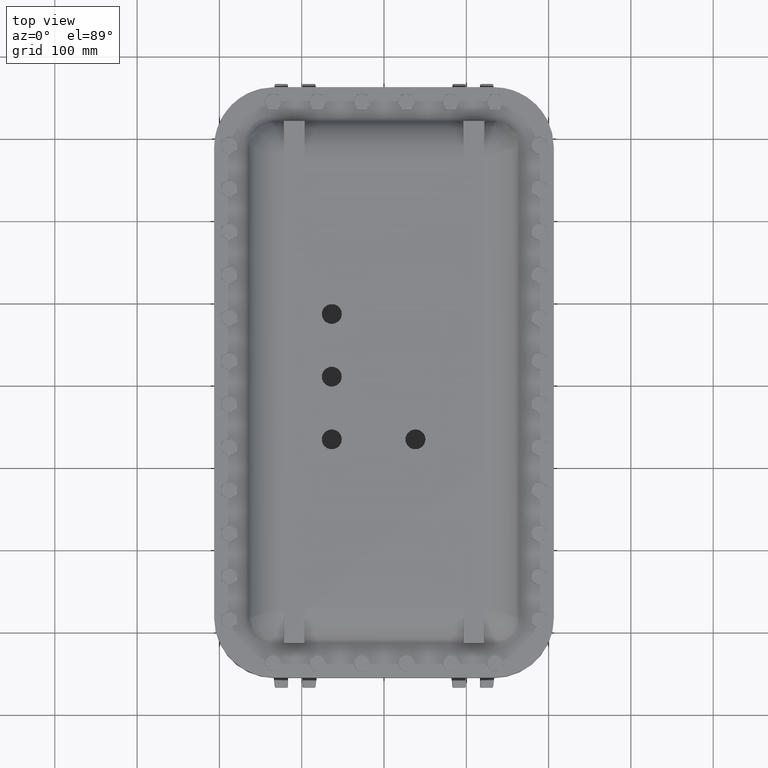
[diagram: clean part render]
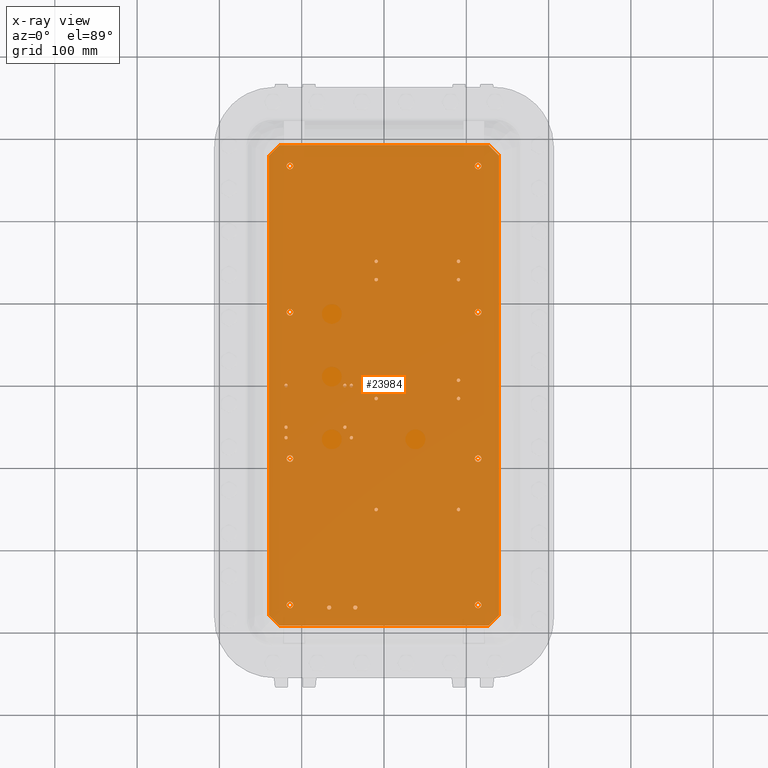
[diagram: x-ray — body ghosted, one internal face saturated and labeled with its STEP entity id]
A machine part, top view, then the same camera in x-ray: the body is ghosted and one INTERNAL B-rep face — a face not visible from any outside direction — is saturated and labeled: STEP entity #23984.
In plain terms, the highlighted planar face has unit normal (0, 0, 1).
Its self-contained STEP definition (entity closure, byte-faithful):
#72 = ORIENTED_EDGE ( 'NONE', *, *, #24273, .T. ) ;
#189 = AXIS2_PLACEMENT_3D ( 'NONE', #18701, #5221, #20973 ) ;
#251 = DIRECTION ( 'NONE',  ( -0.0000000000000000000, -0.0000000000000000000, 1.000000000000000000 ) ) ;
#311 = LINE ( 'NONE', #13836, #11593 ) ;
#350 = DIRECTION ( 'NONE',  ( 1.000000000000000000, 0.0000000000000000000, 0.0000000000000000000 ) ) ;
#400 = EDGE_CURVE ( 'NONE', #29153, #9081, #27863, .T. ) ;
#413 = CARTESIAN_POINT ( 'NONE',  ( 4.500000000000000900, -10.34214439420852100, 0.0000000000000000000 ) ) ;
#463 = EDGE_LOOP ( 'NONE', ( #9365, #8821 ) ) ;
#472 = DIRECTION ( 'NONE',  ( 1.000000000000000000, 0.0000000000000000000, 0.0000000000000000000 ) ) ;
#494 = DIRECTION ( 'NONE',  ( 1.000000000000000000, 0.0000000000000000000, 0.0000000000000000000 ) ) ;
#674 = ORIENTED_EDGE ( 'NONE', *, *, #2939, .T. ) ;
#713 = CARTESIAN_POINT ( 'NONE',  ( -0.3750000000000002200, 0.2500000000000030500, 1.707404996040164500E-017 ) ) ;
#735 = DIRECTION ( 'NONE',  ( -0.0000000000000000000, -0.0000000000000000000, 1.000000000000000000 ) ) ;
#747 = VERTEX_POINT ( 'NONE', #18594 ) ;
#833 = CARTESIAN_POINT ( 'NONE',  ( -4.607499999999999900, -1.999999999999997300, 1.707404996040164500E-017 ) ) ;
#894 = DIRECTION ( 'NONE',  ( 1.000000000000000000, 0.0000000000000000000, 0.0000000000000000000 ) ) ;
#920 = CIRCLE ( 'NONE', #3885, 0.08267716535433065900 ) ;
#1138 = CARTESIAN_POINT ( 'NONE',  ( -4.500000000000000000, -3.342144394208521200, 0.0000000000000000000 ) ) ;
#1188 = ORIENTED_EDGE ( 'NONE', *, *, #10932, .T. ) ;
#1198 = DIRECTION ( 'NONE',  ( 1.000000000000000000, 0.0000000000000000000, 0.0000000000000000000 ) ) ;
#1235 = AXIS2_PLACEMENT_3D ( 'NONE', #20938, #7459, #23206 ) ;
#1266 = CIRCLE ( 'NONE', #1235, 0.1578556057914801400 ) ;
#1343 = DIRECTION ( 'NONE',  ( -0.0000000000000000000, -0.0000000000000000000, 1.000000000000000000 ) ) ;
#1410 = AXIS2_PLACEMENT_3D ( 'NONE', #6194, #21956, #8475 ) ;
#1447 = EDGE_CURVE ( 'NONE', #13445, #17315, #11945, .T. ) ;
#1542 = AXIS2_PLACEMENT_3D ( 'NONE', #8668, #24426, #10951 ) ;
#1618 = AXIS2_PLACEMENT_3D ( 'NONE', #5661, #21427, #7952 ) ;
#1623 = VERTEX_POINT ( 'NONE', #15688 ) ;
#1661 = CIRCLE ( 'NONE', #24611, 0.1578556057914801400 ) ;
#1668 = CARTESIAN_POINT ( 'NONE',  ( -2.725500000000000300, -10.62499999999999600, 1.707404996040164500E-017 ) ) ;
#1676 = EDGE_CURVE ( 'NONE', #4597, #10686, #28847, .T. ) ;
#1714 = AXIS2_PLACEMENT_3D ( 'NONE', #14233, #735, #16499 ) ;
#1723 = DIRECTION ( 'NONE',  ( 1.000000000000000000, 0.0000000000000000000, 0.0000000000000000000 ) ) ;
#1728 = EDGE_LOOP ( 'NONE', ( #16379, #17487 ) ) ;
#1894 = ORIENTED_EDGE ( 'NONE', *, *, #3232, .T. ) ;
#1971 = EDGE_LOOP ( 'NONE', ( #9029, #12608 ) ) ;
#2026 = DIRECTION ( 'NONE',  ( 1.000000000000000000, 0.0000000000000000000, 0.0000000000000000000 ) ) ;
#2054 = ORIENTED_EDGE ( 'NONE', *, *, #20398, .T. ) ;
#2078 = CARTESIAN_POINT ( 'NONE',  ( 3.563000000000001500, 0.2500000000000030500, 1.707404996040164500E-017 ) ) ;
#2114 = DIRECTION ( 'NONE',  ( 1.000000000000000000, 0.0000000000000000000, 0.0000000000000000000 ) ) ;
#2317 = ORIENTED_EDGE ( 'NONE', *, *, #17462, .T. ) ;
#2326 = FACE_BOUND ( 'NONE', #17490, .T. ) ;
#2500 = DIRECTION ( 'NONE',  ( -0.0000000000000000000, -0.0000000000000000000, 1.000000000000000000 ) ) ;
#2535 = VERTEX_POINT ( 'NONE', #15786 ) ;
#2613 = EDGE_LOOP ( 'NONE', ( #1894, #21634 ) ) ;
#2626 = AXIS2_PLACEMENT_3D ( 'NONE', #12272, #28023, #14532 ) ;
#2632 = LINE ( 'NONE', #26319, #25883 ) ;
#2664 = AXIS2_PLACEMENT_3D ( 'NONE', #2078, #17803, #4312 ) ;
#2759 = CARTESIAN_POINT ( 'NONE',  ( -4.500000000000000000, 10.49999999999999800, 0.0000000000000000000 ) ) ;
#2877 = EDGE_LOOP ( 'NONE', ( #15974, #24398 ) ) ;
#2883 = PLANE ( 'NONE',  #14634 ) ;
#2939 = EDGE_CURVE ( 'NONE', #19952, #26573, #6353, .T. ) ;
#2968 = CARTESIAN_POINT ( 'NONE',  ( 4.500000000000000900, -10.65785560579148200, 0.0000000000000000000 ) ) ;
#2992 = DIRECTION ( 'NONE',  ( 1.000000000000000000, 0.0000000000000000000, 0.0000000000000000000 ) ) ;
#3018 = FACE_BOUND ( 'NONE', #10566, .T. ) ;
#3119 = CARTESIAN_POINT ( 'NONE',  ( -1.561999999999999800, -2.499999999999996900, 1.707404996040164500E-017 ) ) ;
#3232 = EDGE_CURVE ( 'NONE', #8904, #22044, #6702, .T. ) ;
#3238 = CARTESIAN_POINT ( 'NONE',  ( -4.500000000000000000, -3.500000000000001300, 0.0000000000000000000 ) ) ;
#3246 = CARTESIAN_POINT ( 'NONE',  ( 3.480322834645670500, -0.6249999999999967800, 1.707404996040164500E-017 ) ) ;
#3352 = EDGE_LOOP ( 'NONE', ( #4292, #21097 ) ) ;
#3375 = VERTEX_POINT ( 'NONE', #9937 ) ;
#3381 = CIRCLE ( 'NONE', #20107, 0.1004999999999999200 ) ;
#3397 = EDGE_CURVE ( 'NONE', #2535, #12994, #8453, .T. ) ;
#3468 = CIRCLE ( 'NONE', #16457, 0.07950000000000007100 ) ;
#3477 = DIRECTION ( 'NONE',  ( -0.0000000000000000000, -0.0000000000000000000, 1.000000000000000000 ) ) ;
#3569 = CARTESIAN_POINT ( 'NONE',  ( 5.500000000000000000, -11.00000000000000200, 0.0000000000000000000 ) ) ;
#3670 = CARTESIAN_POINT ( 'NONE',  ( -0.3750000000000002200, 0.2500000000000030500, 1.707404996040164500E-017 ) ) ;
#3701 = FACE_BOUND ( 'NONE', #12804, .T. ) ;
#3774 = EDGE_LOOP ( 'NONE', ( #6535, #14217 ) ) ;
#3787 = EDGE_CURVE ( 'NONE', #10686, #4597, #24989, .T. ) ;
#3829 = EDGE_CURVE ( 'NONE', #15304, #13753, #311, .T. ) ;
#3848 = DIRECTION ( 'NONE',  ( 4.966996352116842000E-017, -1.000000000000000000, 0.0000000000000000000 ) ) ;
#3872 = CARTESIAN_POINT ( 'NONE',  ( -4.499999999999999100, -10.65785560579148200, 0.0000000000000000000 ) ) ;
#3885 = AXIS2_PLACEMENT_3D ( 'NONE', #7994, #23745, #10273 ) ;
#3909 = CIRCLE ( 'NONE', #4543, 0.08267716535433089500 ) ;
#3911 = DIRECTION ( 'NONE',  ( 0.0000000000000000000, -0.0000000000000000000, 1.000000000000000000 ) ) ;
#3918 = ORIENTED_EDGE ( 'NONE', *, *, #14960, .T. ) ;
#3921 = DIRECTION ( 'NONE',  ( -0.0000000000000000000, -0.0000000000000000000, 1.000000000000000000 ) ) ;
#3954 = DIRECTION ( 'NONE',  ( -0.0000000000000000000, -0.0000000000000000000, 1.000000000000000000 ) ) ;
#3967 = CIRCLE ( 'NONE', #15451, 0.1578556057914801400 ) ;
#4172 = VECTOR ( 'NONE', #16590, 39.37007874015748900 ) ;
#4246 = ORIENTED_EDGE ( 'NONE', *, *, #21592, .T. ) ;
#4292 = ORIENTED_EDGE ( 'NONE', *, *, #19998, .T. ) ;
#4312 = DIRECTION ( 'NONE',  ( 1.000000000000000000, 0.0000000000000000000, 0.0000000000000000000 ) ) ;
#4314 = VERTEX_POINT ( 'NONE', #9589 ) ;
#4416 = FACE_BOUND ( 'NONE', #14302, .T. ) ;
#4517 = CARTESIAN_POINT ( 'NONE',  ( 3.480322834645670500, 5.938000000000002400, 1.707404996040164500E-017 ) ) ;
#4543 = AXIS2_PLACEMENT_3D ( 'NONE', #6699, #22468, #8972 ) ;
#4597 = VERTEX_POINT ( 'NONE', #1668 ) ;
#4637 = VERTEX_POINT ( 'NONE', #22032 ) ;
#4670 = AXIS2_PLACEMENT_3D ( 'NONE', #8521, #24279, #10799 ) ;
#4690 = CIRCLE ( 'NONE', #10944, 0.08267716535433089500 ) ;
#4753 = AXIS2_PLACEMENT_3D ( 'NONE', #22473, #8979, #24739 ) ;
#4878 = AXIS2_PLACEMENT_3D ( 'NONE', #10412, #26163, #12663 ) ;
#4907 = ORIENTED_EDGE ( 'NONE', *, *, #22970, .T. ) ;
#4965 = VERTEX_POINT ( 'NONE', #27743 ) ;
#5005 = DIRECTION ( 'NONE',  ( 1.000000000000000000, 0.0000000000000000000, 0.0000000000000000000 ) ) ;
#5012 = AXIS2_PLACEMENT_3D ( 'NONE', #23594, #10109, #25869 ) ;
#5076 = EDGE_CURVE ( 'NONE', #21862, #25685, #10835, .T. ) ;
#5116 = ORIENTED_EDGE ( 'NONE', *, *, #17249, .T. ) ;
#5123 = FACE_BOUND ( 'NONE', #463, .T. ) ;
#5124 = CARTESIAN_POINT ( 'NONE',  ( -16.49999999999997900, -1.748382715945128500E-014, 0.0000000000000000000 ) ) ;
#5131 = EDGE_CURVE ( 'NONE', #4314, #28429, #15397, .T. ) ;
#5221 = DIRECTION ( 'NONE',  ( -0.0000000000000000000, -0.0000000000000000000, 1.000000000000000000 ) ) ;
#5233 = VERTEX_POINT ( 'NONE', #3872 ) ;
#5261 = CIRCLE ( 'NONE', #9469, 0.1578556057914801400 ) ;
#5295 = VERTEX_POINT ( 'NONE', #17667 ) ;
#5352 = AXIS2_PLACEMENT_3D ( 'NONE', #2759, #18486, #5005 ) ;
#5372 = DIRECTION ( 'NONE',  ( 1.000000000000000000, 0.0000000000000000000, 0.0000000000000000000 ) ) ;
#5403 = LINE ( 'NONE', #11607, #28675 ) ;
#5435 = DIRECTION ( 'NONE',  ( -0.0000000000000000000, -0.0000000000000000000, 1.000000000000000000 ) ) ;
#5484 = DIRECTION ( 'NONE',  ( 1.000000000000000000, 0.0000000000000000000, 0.0000000000000000000 ) ) ;
#5549 = EDGE_CURVE ( 'NONE', #29086, #4637, #24912, .T. ) ;
#5648 = DIRECTION ( 'NONE',  ( 1.000000000000000000, -2.185478394931410600E-016, 0.0000000000000000000 ) ) ;
#5656 = CARTESIAN_POINT ( 'NONE',  ( -4.500000000000000000, -3.657855605791481500, 0.0000000000000000000 ) ) ;
#5661 = CARTESIAN_POINT ( 'NONE',  ( 3.563000000000001500, 5.938000000000002400, 1.707404996040164500E-017 ) ) ;
#5688 = VERTEX_POINT ( 'NONE', #28290 ) ;
#5817 = FACE_BOUND ( 'NONE', #2877, .T. ) ;
#5835 = DIRECTION ( 'NONE',  ( 9.933992704233680300E-017, 1.000000000000000000, 0.0000000000000000000 ) ) ;
#5859 = CARTESIAN_POINT ( 'NONE',  ( 3.480322834645670500, -5.936999999999997600, 1.707404996040164500E-017 ) ) ;
#5866 = AXIS2_PLACEMENT_3D ( 'NONE', #27887, #14389, #894 ) ;
#5935 = DIRECTION ( 'NONE',  ( 1.000000000000000000, 0.0000000000000000000, 0.0000000000000000000 ) ) ;
#6038 = CIRCLE ( 'NONE', #1542, 0.07950000000000007100 ) ;
#6049 = CIRCLE ( 'NONE', #7537, 0.08267716535433065900 ) ;
#6194 = CARTESIAN_POINT ( 'NONE',  ( -4.687000000000000300, -2.499999999999996900, 1.707404996040164500E-017 ) ) ;
#6197 = DIRECTION ( 'NONE',  ( -0.0000000000000000000, -0.0000000000000000000, 1.000000000000000000 ) ) ;
#6262 = AXIS2_PLACEMENT_3D ( 'NONE', #17422, #3921, #19665 ) ;
#6353 = CIRCLE ( 'NONE', #1410, 0.07950000000000007100 ) ;
#6393 = DIRECTION ( 'NONE',  ( 0.7071067811865474600, -0.7071067811865474600, -0.0000000000000000000 ) ) ;
#6463 = ORIENTED_EDGE ( 'NONE', *, *, #5076, .T. ) ;
#6526 = ORIENTED_EDGE ( 'NONE', *, *, #10368, .T. ) ;
#6535 = ORIENTED_EDGE ( 'NONE', *, *, #13982, .T. ) ;
#6559 = VERTEX_POINT ( 'NONE', #19053 ) ;
#6622 = CARTESIAN_POINT ( 'NONE',  ( 3.480322834645670500, 5.063000000000002400, 1.707404996040164500E-017 ) ) ;
#6664 = AXIS2_PLACEMENT_3D ( 'NONE', #8441, #24186, #10718 ) ;
#6699 = CARTESIAN_POINT ( 'NONE',  ( 3.563000000000001500, -5.936999999999997600, 1.707404996040164500E-017 ) ) ;
#6702 = CIRCLE ( 'NONE', #5352, 0.1578556057914801400 ) ;
#6914 = AXIS2_PLACEMENT_3D ( 'NONE', #18925, #5435, #21197 ) ;
#6983 = VERTEX_POINT ( 'NONE', #13339 ) ;
#6998 = AXIS2_PLACEMENT_3D ( 'NONE', #27463, #13964, #472 ) ;
#7001 = CARTESIAN_POINT ( 'NONE',  ( -0.4576771653543308400, 5.063000000000002400, 1.707404996040164500E-017 ) ) ;
#7011 = ORIENTED_EDGE ( 'NONE', *, *, #3829, .F. ) ;
#7036 = CARTESIAN_POINT ( 'NONE',  ( -1.482499999999999900, 2.185478394931410600E-015, 1.707404996040164500E-017 ) ) ;
#7097 = ORIENTED_EDGE ( 'NONE', *, *, #27403, .T. ) ;
#7210 = VERTEX_POINT ( 'NONE', #12895 ) ;
#7283 = EDGE_CURVE ( 'NONE', #28185, #5295, #20935, .T. ) ;
#7303 = AXIS2_PLACEMENT_3D ( 'NONE', #12765, #28516, #15017 ) ;
#7358 = ORIENTED_EDGE ( 'NONE', *, *, #15889, .T. ) ;
#7385 = CIRCLE ( 'NONE', #28143, 0.1578556057914801400 ) ;
#7402 = DIRECTION ( 'NONE',  ( 0.0000000000000000000, -0.0000000000000000000, 1.000000000000000000 ) ) ;
#7405 = ORIENTED_EDGE ( 'NONE', *, *, #26482, .T. ) ;
#7459 = DIRECTION ( 'NONE',  ( 0.0000000000000000000, -0.0000000000000000000, 1.000000000000000000 ) ) ;
#7499 = CIRCLE ( 'NONE', #13220, 0.07950000000000007100 ) ;
#7511 = CIRCLE ( 'NONE', #2626, 0.1578556057914801400 ) ;
#7537 = AXIS2_PLACEMENT_3D ( 'NONE', #713, #16474, #2992 ) ;
#7611 = CARTESIAN_POINT ( 'NONE',  ( -5.500000000000000000, 11.00000000000000200, 0.0000000000000000000 ) ) ;
#7685 = EDGE_CURVE ( 'NONE', #7210, #3375, #15285, .T. ) ;
#7716 = DIRECTION ( 'NONE',  ( -0.0000000000000000000, -0.0000000000000000000, 1.000000000000000000 ) ) ;
#7853 = CIRCLE ( 'NONE', #19195, 0.07950000000000007100 ) ;
#7952 = DIRECTION ( 'NONE',  ( 1.000000000000000000, 0.0000000000000000000, 0.0000000000000000000 ) ) ;
#7969 = DIRECTION ( 'NONE',  ( 0.0000000000000000000, -0.0000000000000000000, 1.000000000000000000 ) ) ;
#7994 = CARTESIAN_POINT ( 'NONE',  ( -0.3750000000000002200, 5.938000000000002400, 1.707404996040164500E-017 ) ) ;
#8035 = EDGE_CURVE ( 'NONE', #20026, #21643, #4690, .T. ) ;
#8075 = EDGE_CURVE ( 'NONE', #747, #5233, #3967, .T. ) ;
#8194 = EDGE_CURVE ( 'NONE', #24857, #22029, #13151, .T. ) ;
#8250 = ORIENTED_EDGE ( 'NONE', *, *, #7283, .F. ) ;
#8300 = FACE_BOUND ( 'NONE', #3352, .T. ) ;
#8441 = CARTESIAN_POINT ( 'NONE',  ( -0.3750000000000002200, 5.938000000000002400, 1.707404996040164500E-017 ) ) ;
#8453 = CIRCLE ( 'NONE', #23482, 0.07950000000000007100 ) ;
#8475 = DIRECTION ( 'NONE',  ( 1.000000000000000000, 0.0000000000000000000, 0.0000000000000000000 ) ) ;
#8486 = DIRECTION ( 'NONE',  ( -0.0000000000000000000, -0.0000000000000000000, 1.000000000000000000 ) ) ;
#8501 = EDGE_CURVE ( 'NONE', #19613, #21581, #7499, .T. ) ;
#8521 = CARTESIAN_POINT ( 'NONE',  ( -4.499999999999999100, -10.50000000000000200, 0.0000000000000000000 ) ) ;
#8635 = CIRCLE ( 'NONE', #24657, 0.1578556057914801400 ) ;
#8660 = CIRCLE ( 'NONE', #27460, 0.08267716535433089500 ) ;
#8668 = CARTESIAN_POINT ( 'NONE',  ( -1.874999999999999600, -1.999999999999997300, 1.707404996040164500E-017 ) ) ;
#8684 = VERTEX_POINT ( 'NONE', #413 ) ;
#8821 = ORIENTED_EDGE ( 'NONE', *, *, #20788, .T. ) ;
#8893 = DIRECTION ( 'NONE',  ( 0.0000000000000000000, -0.0000000000000000000, 1.000000000000000000 ) ) ;
#8904 = VERTEX_POINT ( 'NONE', #26106 ) ;
#8947 = EDGE_CURVE ( 'NONE', #25685, #21862, #6038, .T. ) ;
#8972 = DIRECTION ( 'NONE',  ( 1.000000000000000000, 0.0000000000000000000, 0.0000000000000000000 ) ) ;
#8979 = DIRECTION ( 'NONE',  ( -0.0000000000000000000, -0.0000000000000000000, 1.000000000000000000 ) ) ;
#9012 = EDGE_CURVE ( 'NONE', #19843, #10910, #3909, .T. ) ;
#9016 = FACE_BOUND ( 'NONE', #25590, .T. ) ;
#9029 = ORIENTED_EDGE ( 'NONE', *, *, #20265, .T. ) ;
#9081 = VERTEX_POINT ( 'NONE', #4517 ) ;
#9103 = ORIENTED_EDGE ( 'NONE', *, *, #8501, .T. ) ;
#9284 = CARTESIAN_POINT ( 'NONE',  ( -2.625000000000000000, -10.62499999999999600, 1.707404996040164500E-017 ) ) ;
#9320 = EDGE_CURVE ( 'NONE', #19835, #1623, #24053, .T. ) ;
#9356 = CARTESIAN_POINT ( 'NONE',  ( 4.500000000000000000, 3.499999999999999100, 0.0000000000000000000 ) ) ;
#9365 = ORIENTED_EDGE ( 'NONE', *, *, #18545, .T. ) ;
#9469 = AXIS2_PLACEMENT_3D ( 'NONE', #22395, #8893, #24655 ) ;
#9561 = AXIS2_PLACEMENT_3D ( 'NONE', #17459, #3954, #19704 ) ;
#9589 = CARTESIAN_POINT ( 'NONE',  ( -0.2923228346456696000, 5.063000000000002400, 1.707404996040164500E-017 ) ) ;
#9716 = FACE_BOUND ( 'NONE', #11971, .T. ) ;
#9937 = CARTESIAN_POINT ( 'NONE',  ( 5.500000000000000000, -11.00000000000000200, 0.0000000000000000000 ) ) ;
#9962 = VERTEX_POINT ( 'NONE', #29173 ) ;
#10047 = ORIENTED_EDGE ( 'NONE', *, *, #18401, .T. ) ;
#10054 = DIRECTION ( 'NONE',  ( 0.0000000000000000000, -0.0000000000000000000, 1.000000000000000000 ) ) ;
#10109 = DIRECTION ( 'NONE',  ( -0.0000000000000000000, -0.0000000000000000000, 1.000000000000000000 ) ) ;
#10112 = CIRCLE ( 'NONE', #9561, 0.08267716535433065900 ) ;
#10178 = CARTESIAN_POINT ( 'NONE',  ( -4.500000000000000000, 3.342144394208518100, 0.0000000000000000000 ) ) ;
#10273 = DIRECTION ( 'NONE',  ( 1.000000000000000000, 0.0000000000000000000, 0.0000000000000000000 ) ) ;
#10336 = DIRECTION ( 'NONE',  ( -0.0000000000000000000, -0.0000000000000000000, 1.000000000000000000 ) ) ;
#10368 = EDGE_CURVE ( 'NONE', #15699, #22822, #23263, .T. ) ;
#10412 = CARTESIAN_POINT ( 'NONE',  ( -4.500000000000000000, 3.499999999999998200, 0.0000000000000000000 ) ) ;
#10442 = FACE_BOUND ( 'NONE', #20907, .T. ) ;
#10566 = EDGE_LOOP ( 'NONE', ( #14619, #20017 ) ) ;
#10654 = CIRCLE ( 'NONE', #6998, 0.1578556057914801400 ) ;
#10686 = VERTEX_POINT ( 'NONE', #11902 ) ;
#10691 = VECTOR ( 'NONE', #5648, 39.37007874015748100 ) ;
#10718 = DIRECTION ( 'NONE',  ( 1.000000000000000000, 0.0000000000000000000, 0.0000000000000000000 ) ) ;
#10762 = DIRECTION ( 'NONE',  ( -0.0000000000000000000, -0.0000000000000000000, 1.000000000000000000 ) ) ;
#10781 = ORIENTED_EDGE ( 'NONE', *, *, #22907, .T. ) ;
#10799 = DIRECTION ( 'NONE',  ( 1.000000000000000000, 0.0000000000000000000, 0.0000000000000000000 ) ) ;
#10835 = CIRCLE ( 'NONE', #5012, 0.07950000000000007100 ) ;
#10869 = ORIENTED_EDGE ( 'NONE', *, *, #8194, .T. ) ;
#10910 = VERTEX_POINT ( 'NONE', #5859 ) ;
#10911 = CARTESIAN_POINT ( 'NONE',  ( -0.4576771653543308400, 5.938000000000002400, 1.707404996040164500E-017 ) ) ;
#10932 = EDGE_CURVE ( 'NONE', #27300, #13538, #11264, .T. ) ;
#10944 = AXIS2_PLACEMENT_3D ( 'NONE', #24979, #11479, #27238 ) ;
#10951 = DIRECTION ( 'NONE',  ( 1.000000000000000000, 0.0000000000000000000, 0.0000000000000000000 ) ) ;
#11132 = FACE_BOUND ( 'NONE', #1971, .T. ) ;
#11264 = CIRCLE ( 'NONE', #6664, 0.08267716535433065900 ) ;
#11287 = EDGE_LOOP ( 'NONE', ( #72, #4907 ) ) ;
#11479 = DIRECTION ( 'NONE',  ( -0.0000000000000000000, -0.0000000000000000000, 1.000000000000000000 ) ) ;
#11497 = VERTEX_POINT ( 'NONE', #23864 ) ;
#11543 = LINE ( 'NONE', #3569, #16131 ) ;
#11551 = DIRECTION ( 'NONE',  ( 1.000000000000000000, 0.0000000000000000000, 0.0000000000000000000 ) ) ;
#11593 = VECTOR ( 'NONE', #16120, 39.37007874015748100 ) ;
#11605 = CARTESIAN_POINT ( 'NONE',  ( 3.563000000000001500, -0.6249999999999967800, 1.707404996040164500E-017 ) ) ;
#11607 = CARTESIAN_POINT ( 'NONE',  ( 5.000000000000003600, 11.50000000000000200, 0.0000000000000000000 ) ) ;
#11632 = DIRECTION ( 'NONE',  ( 1.000000000000000000, 0.0000000000000000000, 0.0000000000000000000 ) ) ;
#11838 = FACE_BOUND ( 'NONE', #15717, .T. ) ;
#11902 = CARTESIAN_POINT ( 'NONE',  ( -2.524499999999999700, -10.62499999999999600, 1.707404996040164500E-017 ) ) ;
#11940 = VERTEX_POINT ( 'NONE', #21461 ) ;
#11945 = CIRCLE ( 'NONE', #12314, 0.1578556057914801400 ) ;
#11959 = CARTESIAN_POINT ( 'NONE',  ( -0.2923228346456696000, 5.938000000000002400, 1.707404996040164500E-017 ) ) ;
#11971 = EDGE_LOOP ( 'NONE', ( #7097, #16878 ) ) ;
#11984 = EDGE_LOOP ( 'NONE', ( #5116, #4246 ) ) ;
#12119 = CARTESIAN_POINT ( 'NONE',  ( -1.561999999999999800, 2.185478394931410600E-015, 1.707404996040164500E-017 ) ) ;
#12168 = CARTESIAN_POINT ( 'NONE',  ( 3.645677165354332100, -0.6249999999999967800, 1.707404996040164500E-017 ) ) ;
#12190 = DIRECTION ( 'NONE',  ( -0.0000000000000000000, -0.0000000000000000000, 1.000000000000000000 ) ) ;
#12272 = CARTESIAN_POINT ( 'NONE',  ( 4.500000000000000000, 3.499999999999999100, 0.0000000000000000000 ) ) ;
#12288 = CARTESIAN_POINT ( 'NONE',  ( 5.000000000000000900, -11.50000000000000000, 0.0000000000000000000 ) ) ;
#12314 = AXIS2_PLACEMENT_3D ( 'NONE', #28697, #15202, #1723 ) ;
#12447 = CARTESIAN_POINT ( 'NONE',  ( -0.3750000000000002200, -5.936999999999997600, 1.707404996040164500E-017 ) ) ;
#12556 = ORIENTED_EDGE ( 'NONE', *, *, #1676, .T. ) ;
#12608 = ORIENTED_EDGE ( 'NONE', *, *, #8035, .T. ) ;
#12652 = CARTESIAN_POINT ( 'NONE',  ( -1.795499999999999400, 2.185478394931410600E-015, 1.707404996040164500E-017 ) ) ;
#12663 = DIRECTION ( 'NONE',  ( 1.000000000000000000, 0.0000000000000000000, 0.0000000000000000000 ) ) ;
#12765 = CARTESIAN_POINT ( 'NONE',  ( -4.687000000000000300, 2.185478394931410600E-015, 1.707404996040164500E-017 ) ) ;
#12804 = EDGE_LOOP ( 'NONE', ( #674, #26387 ) ) ;
#12818 = DIRECTION ( 'NONE',  ( -0.0000000000000000000, -0.0000000000000000000, 1.000000000000000000 ) ) ;
#12836 = AXIS2_PLACEMENT_3D ( 'NONE', #15980, #2500, #18219 ) ;
#12876 = CIRCLE ( 'NONE', #22202, 0.07950000000000007100 ) ;
#12895 = CARTESIAN_POINT ( 'NONE',  ( 5.000000000000000900, -11.50000000000000000, 0.0000000000000000000 ) ) ;
#12994 = VERTEX_POINT ( 'NONE', #24823 ) ;
#13034 = DIRECTION ( 'NONE',  ( 0.0000000000000000000, -0.0000000000000000000, 1.000000000000000000 ) ) ;
#13097 = CARTESIAN_POINT ( 'NONE',  ( -4.999999999999999100, -11.49999999999999600, 0.0000000000000000000 ) ) ;
#13102 = CIRCLE ( 'NONE', #21109, 0.07950000000000007100 ) ;
#13151 = CIRCLE ( 'NONE', #1714, 0.07950000000000007100 ) ;
#13220 = AXIS2_PLACEMENT_3D ( 'NONE', #29079, #15590, #2114 ) ;
#13260 = AXIS2_PLACEMENT_3D ( 'NONE', #9284, #25054, #11551 ) ;
#13324 = CARTESIAN_POINT ( 'NONE',  ( 4.500000000000000000, 10.65785560579148200, 0.0000000000000000000 ) ) ;
#13331 = EDGE_CURVE ( 'NONE', #9081, #29153, #15413, .T. ) ;
#13339 = CARTESIAN_POINT ( 'NONE',  ( -5.500000000000000000, 11.00000000000000200, 0.0000000000000000000 ) ) ;
#13445 = VERTEX_POINT ( 'NONE', #24086 ) ;
#13470 = ORIENTED_EDGE ( 'NONE', *, *, #15582, .F. ) ;
#13538 = VERTEX_POINT ( 'NONE', #10911 ) ;
#13633 = EDGE_LOOP ( 'NONE', ( #14145, #24331 ) ) ;
#13736 = CARTESIAN_POINT ( 'NONE',  ( -2.625000000000000000, -10.62499999999999600, 1.707404996040164500E-017 ) ) ;
#13753 = VERTEX_POINT ( 'NONE', #22987 ) ;
#13765 = VERTEX_POINT ( 'NONE', #16311 ) ;
#13832 = DIRECTION ( 'NONE',  ( 0.0000000000000000000, -0.0000000000000000000, 1.000000000000000000 ) ) ;
#13836 = CARTESIAN_POINT ( 'NONE',  ( 5.500000000000001800, 11.00000000000000400, 0.0000000000000000000 ) ) ;
#13855 = DIRECTION ( 'NONE',  ( 1.000000000000000000, 0.0000000000000000000, 0.0000000000000000000 ) ) ;
#13915 = VERTEX_POINT ( 'NONE', #12652 ) ;
#13964 = DIRECTION ( 'NONE',  ( 0.0000000000000000000, -0.0000000000000000000, 1.000000000000000000 ) ) ;
#13982 = EDGE_CURVE ( 'NONE', #25365, #23767, #10112, .T. ) ;
#13985 = DIRECTION ( 'NONE',  ( -0.0000000000000000000, -0.0000000000000000000, 1.000000000000000000 ) ) ;
#14051 = EDGE_CURVE ( 'NONE', #1623, #19835, #3381, .T. ) ;
#14071 = VERTEX_POINT ( 'NONE', #13324 ) ;
#14145 = ORIENTED_EDGE ( 'NONE', *, *, #9012, .T. ) ;
#14197 = CIRCLE ( 'NONE', #19235, 0.07950000000000007100 ) ;
#14217 = ORIENTED_EDGE ( 'NONE', *, *, #15438, .T. ) ;
#14233 = CARTESIAN_POINT ( 'NONE',  ( -1.561999999999999800, 2.185478394931410600E-015, 1.707404996040164500E-017 ) ) ;
#14278 = CIRCLE ( 'NONE', #27718, 0.1578556057914801400 ) ;
#14294 = FACE_BOUND ( 'NONE', #2613, .T. ) ;
#14302 = EDGE_LOOP ( 'NONE', ( #2054, #28413 ) ) ;
#14387 = DIRECTION ( 'NONE',  ( 1.000000000000000000, 0.0000000000000000000, 0.0000000000000000000 ) ) ;
#14389 = DIRECTION ( 'NONE',  ( -0.0000000000000000000, -0.0000000000000000000, 1.000000000000000000 ) ) ;
#14416 = EDGE_CURVE ( 'NONE', #13538, #27300, #920, .T. ) ;
#14478 = AXIS2_PLACEMENT_3D ( 'NONE', #12447, #28192, #14689 ) ;
#14532 = DIRECTION ( 'NONE',  ( 1.000000000000000000, 0.0000000000000000000, 0.0000000000000000000 ) ) ;
#14619 = ORIENTED_EDGE ( 'NONE', *, *, #1447, .T. ) ;
#14634 = AXIS2_PLACEMENT_3D ( 'NONE', #5124, #7402, #23148 ) ;
#14679 = DIRECTION ( 'NONE',  ( 0.0000000000000000000, -0.0000000000000000000, 1.000000000000000000 ) ) ;
#14689 = DIRECTION ( 'NONE',  ( 1.000000000000000000, 0.0000000000000000000, 0.0000000000000000000 ) ) ;
#14767 = ORIENTED_EDGE ( 'NONE', *, *, #7685, .F. ) ;
#14821 = CARTESIAN_POINT ( 'NONE',  ( -0.3750000000000002200, 5.063000000000002400, 1.707404996040164500E-017 ) ) ;
#14960 = EDGE_CURVE ( 'NONE', #12994, #2535, #21309, .T. ) ;
#14985 = FACE_BOUND ( 'NONE', #11287, .T. ) ;
#15017 = DIRECTION ( 'NONE',  ( 1.000000000000000000, 0.0000000000000000000, 0.0000000000000000000 ) ) ;
#15139 = ORIENTED_EDGE ( 'NONE', *, *, #22094, .T. ) ;
#15202 = DIRECTION ( 'NONE',  ( 0.0000000000000000000, -0.0000000000000000000, 1.000000000000000000 ) ) ;
#15285 = LINE ( 'NONE', #12288, #18443 ) ;
#15304 = VERTEX_POINT ( 'NONE', #16300 ) ;
#15397 = CIRCLE ( 'NONE', #21617, 0.08267716535433065900 ) ;
#15413 = CIRCLE ( 'NONE', #1618, 0.08267716535433089500 ) ;
#15438 = EDGE_CURVE ( 'NONE', #23767, #25365, #18821, .T. ) ;
#15451 = AXIS2_PLACEMENT_3D ( 'NONE', #27328, #13832, #350 ) ;
#15452 = ORIENTED_EDGE ( 'NONE', *, *, #20392, .F. ) ;
#15495 = DIRECTION ( 'NONE',  ( -0.0000000000000000000, -0.0000000000000000000, 1.000000000000000000 ) ) ;
#15582 = EDGE_CURVE ( 'NONE', #6983, #28185, #2632, .T. ) ;
#15590 = DIRECTION ( 'NONE',  ( -0.0000000000000000000, -0.0000000000000000000, 1.000000000000000000 ) ) ;
#15688 = CARTESIAN_POINT ( 'NONE',  ( -1.274500000000000000, -10.62499999999999600, 1.707404996040164500E-017 ) ) ;
#15699 = VERTEX_POINT ( 'NONE', #17736 ) ;
#15701 = FACE_BOUND ( 'NONE', #22370, .T. ) ;
#15717 = EDGE_LOOP ( 'NONE', ( #17204, #27047 ) ) ;
#15786 = CARTESIAN_POINT ( 'NONE',  ( -4.766499999999999700, 2.195214336984632100E-015, 1.707404996040164500E-017 ) ) ;
#15889 = EDGE_CURVE ( 'NONE', #5688, #6559, #20207, .T. ) ;
#15924 = EDGE_LOOP ( 'NONE', ( #1188, #28243 ) ) ;
#15974 = ORIENTED_EDGE ( 'NONE', *, *, #5131, .T. ) ;
#15980 = CARTESIAN_POINT ( 'NONE',  ( 3.563000000000001500, -0.6249999999999967800, 1.707404996040164500E-017 ) ) ;
#16020 = DIRECTION ( 'NONE',  ( 1.000000000000000000, 0.0000000000000000000, 0.0000000000000000000 ) ) ;
#16078 = AXIS2_PLACEMENT_3D ( 'NONE', #25698, #12190, #27948 ) ;
#16110 = EDGE_CURVE ( 'NONE', #21515, #19146, #22679, .T. ) ;
#16120 = DIRECTION ( 'NONE',  ( -0.7071067811865483500, 0.7071067811865468000, 0.0000000000000000000 ) ) ;
#16126 = EDGE_LOOP ( 'NONE', ( #24101, #22719 ) ) ;
#16131 = VECTOR ( 'NONE', #5835, 39.37007874015748100 ) ;
#16162 = ORIENTED_EDGE ( 'NONE', *, *, #3397, .T. ) ;
#16241 = CARTESIAN_POINT ( 'NONE',  ( -1.641500000000000000, -2.499999999999996900, 1.707404996040164500E-017 ) ) ;
#16300 = CARTESIAN_POINT ( 'NONE',  ( 5.500000000000001800, 11.00000000000000500, 0.0000000000000000000 ) ) ;
#16311 = CARTESIAN_POINT ( 'NONE',  ( 4.500000000000000900, -3.657855605791480600, 0.0000000000000000000 ) ) ;
#16379 = ORIENTED_EDGE ( 'NONE', *, *, #8075, .T. ) ;
#16380 = CIRCLE ( 'NONE', #4878, 0.1578556057914801400 ) ;
#16418 = FACE_BOUND ( 'NONE', #13633, .T. ) ;
#16457 = AXIS2_PLACEMENT_3D ( 'NONE', #21182, #7716, #23459 ) ;
#16474 = DIRECTION ( 'NONE',  ( -0.0000000000000000000, -0.0000000000000000000, 1.000000000000000000 ) ) ;
#16499 = DIRECTION ( 'NONE',  ( 1.000000000000000000, 0.0000000000000000000, 0.0000000000000000000 ) ) ;
#16590 = DIRECTION ( 'NONE',  ( -0.7071067811865459100, -0.7071067811865490200, -0.0000000000000000000 ) ) ;
#16660 = VERTEX_POINT ( 'NONE', #12168 ) ;
#16674 = EDGE_CURVE ( 'NONE', #6559, #5688, #7511, .T. ) ;
#16741 = EDGE_CURVE ( 'NONE', #5295, #7210, #17371, .T. ) ;
#16878 = ORIENTED_EDGE ( 'NONE', *, *, #5549, .T. ) ;
#16997 = CARTESIAN_POINT ( 'NONE',  ( -0.3750000000000002200, 5.063000000000002400, 1.707404996040164500E-017 ) ) ;
#17099 = DIRECTION ( 'NONE',  ( 1.000000000000000000, 0.0000000000000000000, 0.0000000000000000000 ) ) ;
#17126 = FACE_BOUND ( 'NONE', #15924, .T. ) ;
#17204 = ORIENTED_EDGE ( 'NONE', *, *, #400, .T. ) ;
#17249 = EDGE_CURVE ( 'NONE', #26282, #9962, #6049, .T. ) ;
#17315 = VERTEX_POINT ( 'NONE', #10178 ) ;
#17369 = CARTESIAN_POINT ( 'NONE',  ( 3.645677165354332100, -5.936999999999997600, 1.707404996040164500E-017 ) ) ;
#17371 = LINE ( 'NONE', #23591, #10691 ) ;
#17419 = CARTESIAN_POINT ( 'NONE',  ( 4.500000000000000900, -3.500000000000000400, 0.0000000000000000000 ) ) ;
#17422 = CARTESIAN_POINT ( 'NONE',  ( 3.563000000000001500, 0.2500000000000030500, 1.707404996040164500E-017 ) ) ;
#17443 = CIRCLE ( 'NONE', #25219, 0.1578556057914801400 ) ;
#17459 = CARTESIAN_POINT ( 'NONE',  ( -0.3750000000000002200, -5.936999999999997600, 1.707404996040164500E-017 ) ) ;
#17462 = EDGE_CURVE ( 'NONE', #21581, #19613, #13102, .T. ) ;
#17487 = ORIENTED_EDGE ( 'NONE', *, *, #25730, .T. ) ;
#17490 = EDGE_LOOP ( 'NONE', ( #15139, #18287 ) ) ;
#17525 = CIRCLE ( 'NONE', #21185, 0.08267716535433065900 ) ;
#17667 = CARTESIAN_POINT ( 'NONE',  ( -4.999999999999999100, -11.49999999999999600, 0.0000000000000000000 ) ) ;
#17736 = CARTESIAN_POINT ( 'NONE',  ( 3.480322834645670500, 0.2500000000000030500, 1.707404996040164500E-017 ) ) ;
#17803 = DIRECTION ( 'NONE',  ( -0.0000000000000000000, -0.0000000000000000000, 1.000000000000000000 ) ) ;
#18219 = DIRECTION ( 'NONE',  ( 1.000000000000000000, 0.0000000000000000000, 0.0000000000000000000 ) ) ;
#18287 = ORIENTED_EDGE ( 'NONE', *, *, #29037, .T. ) ;
#18377 = DIRECTION ( 'NONE',  ( -1.000000000000000000, 0.0000000000000000000, 0.0000000000000000000 ) ) ;
#18401 = EDGE_CURVE ( 'NONE', #16660, #24073, #18728, .T. ) ;
#18443 = VECTOR ( 'NONE', #25790, 39.37007874015748100 ) ;
#18486 = DIRECTION ( 'NONE',  ( 0.0000000000000000000, -0.0000000000000000000, 1.000000000000000000 ) ) ;
#18545 = EDGE_CURVE ( 'NONE', #26013, #4965, #27907, .T. ) ;
#18594 = CARTESIAN_POINT ( 'NONE',  ( -4.499999999999999100, -10.34214439420852100, 0.0000000000000000000 ) ) ;
#18630 = AXIS2_PLACEMENT_3D ( 'NONE', #26313, #12818, #28574 ) ;
#18701 = CARTESIAN_POINT ( 'NONE',  ( -0.3750000000000002200, -0.6249999999999967800, 1.707404996040164500E-017 ) ) ;
#18728 = CIRCLE ( 'NONE', #12836, 0.08267716535433089500 ) ;
#18820 = EDGE_CURVE ( 'NONE', #22822, #15699, #27538, .T. ) ;
#18821 = CIRCLE ( 'NONE', #14478, 0.08267716535433065900 ) ;
#18858 = DIRECTION ( 'NONE',  ( -0.0000000000000000000, -0.0000000000000000000, 1.000000000000000000 ) ) ;
#18865 = CARTESIAN_POINT ( 'NONE',  ( 3.645677165354332100, 5.938000000000002400, 1.707404996040164500E-017 ) ) ;
#18909 = CARTESIAN_POINT ( 'NONE',  ( -1.641500000000000000, 2.195214336984632100E-015, 1.707404996040164500E-017 ) ) ;
#18925 = CARTESIAN_POINT ( 'NONE',  ( -1.561999999999999800, -2.499999999999996900, 1.707404996040164500E-017 ) ) ;
#18990 = CIRCLE ( 'NONE', #5866, 0.08267716535433089500 ) ;
#18992 = DIRECTION ( 'NONE',  ( 0.0000000000000000000, -0.0000000000000000000, 1.000000000000000000 ) ) ;
#19053 = CARTESIAN_POINT ( 'NONE',  ( 4.500000000000000000, 3.342144394208518900, 0.0000000000000000000 ) ) ;
#19078 = AXIS2_PLACEMENT_3D ( 'NONE', #27486, #13985, #494 ) ;
#19146 = VERTEX_POINT ( 'NONE', #5656 ) ;
#19195 = AXIS2_PLACEMENT_3D ( 'NONE', #21968, #8486, #24239 ) ;
#19234 = DIRECTION ( 'NONE',  ( 1.000000000000000000, 0.0000000000000000000, 0.0000000000000000000 ) ) ;
#19235 = AXIS2_PLACEMENT_3D ( 'NONE', #24241, #10762, #26516 ) ;
#19296 = CARTESIAN_POINT ( 'NONE',  ( -1.954499999999999700, 2.195214336984632100E-015, 1.707404996040164500E-017 ) ) ;
#19400 = AXIS2_PLACEMENT_3D ( 'NONE', #3119, #18858, #5372 ) ;
#19416 = DIRECTION ( 'NONE',  ( -0.0000000000000000000, -0.0000000000000000000, 1.000000000000000000 ) ) ;
#19501 = VECTOR ( 'NONE', #6393, 39.37007874015748900 ) ;
#19613 = VERTEX_POINT ( 'NONE', #833 ) ;
#19657 = DIRECTION ( 'NONE',  ( 1.000000000000000000, 0.0000000000000000000, 0.0000000000000000000 ) ) ;
#19665 = DIRECTION ( 'NONE',  ( 1.000000000000000000, 0.0000000000000000000, 0.0000000000000000000 ) ) ;
#19670 = CARTESIAN_POINT ( 'NONE',  ( -4.687000000000000300, -1.999999999999997300, 1.707404996040164500E-017 ) ) ;
#19704 = DIRECTION ( 'NONE',  ( 1.000000000000000000, 0.0000000000000000000, 0.0000000000000000000 ) ) ;
#19835 = VERTEX_POINT ( 'NONE', #21788 ) ;
#19843 = VERTEX_POINT ( 'NONE', #17369 ) ;
#19866 = EDGE_CURVE ( 'NONE', #20849, #14071, #7385, .T. ) ;
#19952 = VERTEX_POINT ( 'NONE', #19993 ) ;
#19993 = CARTESIAN_POINT ( 'NONE',  ( -4.607499999999999900, -2.499999999999996900, 1.707404996040164500E-017 ) ) ;
#19998 = EDGE_CURVE ( 'NONE', #14071, #20849, #5261, .T. ) ;
#20017 = ORIENTED_EDGE ( 'NONE', *, *, #27022, .T. ) ;
#20026 = VERTEX_POINT ( 'NONE', #6622 ) ;
#20107 = AXIS2_PLACEMENT_3D ( 'NONE', #28990, #15495, #2026 ) ;
#20182 = CARTESIAN_POINT ( 'NONE',  ( -0.2923228346456696000, 0.2500000000000030500, 1.707404996040164500E-017 ) ) ;
#20207 = CIRCLE ( 'NONE', #24482, 0.1578556057914801400 ) ;
#20262 = FACE_BOUND ( 'NONE', #1728, .T. ) ;
#20265 = EDGE_CURVE ( 'NONE', #21643, #20026, #18990, .T. ) ;
#20281 = ORIENTED_EDGE ( 'NONE', *, *, #24031, .T. ) ;
#20392 = EDGE_CURVE ( 'NONE', #11497, #6983, #21450, .T. ) ;
#20398 = EDGE_CURVE ( 'NONE', #13915, #20507, #3468, .T. ) ;
#20507 = VERTEX_POINT ( 'NONE', #19296 ) ;
#20539 = CARTESIAN_POINT ( 'NONE',  ( -0.2923228346456696000, -5.936999999999997600, 1.707404996040164500E-017 ) ) ;
#20788 = EDGE_CURVE ( 'NONE', #4965, #26013, #26386, .T. ) ;
#20849 = VERTEX_POINT ( 'NONE', #24837 ) ;
#20894 = AXIS2_PLACEMENT_3D ( 'NONE', #21448, #7969, #23721 ) ;
#20895 = CIRCLE ( 'NONE', #4670, 0.1578556057914801400 ) ;
#20907 = EDGE_LOOP ( 'NONE', ( #3918, #16162 ) ) ;
#20935 = LINE ( 'NONE', #13097, #19501 ) ;
#20938 = CARTESIAN_POINT ( 'NONE',  ( 4.500000000000000900, -3.500000000000000400, 0.0000000000000000000 ) ) ;
#20973 = DIRECTION ( 'NONE',  ( 1.000000000000000000, 0.0000000000000000000, 0.0000000000000000000 ) ) ;
#20976 = FACE_BOUND ( 'NONE', #16126, .T. ) ;
#21097 = ORIENTED_EDGE ( 'NONE', *, *, #19866, .T. ) ;
#21109 = AXIS2_PLACEMENT_3D ( 'NONE', #19670, #6197, #21961 ) ;
#21182 = CARTESIAN_POINT ( 'NONE',  ( -1.874999999999999600, 2.185478394931410600E-015, 1.707404996040164500E-017 ) ) ;
#21185 = AXIS2_PLACEMENT_3D ( 'NONE', #16997, #3477, #19234 ) ;
#21197 = DIRECTION ( 'NONE',  ( 1.000000000000000000, 0.0000000000000000000, 0.0000000000000000000 ) ) ;
#21309 = CIRCLE ( 'NONE', #7303, 0.07950000000000007100 ) ;
#21427 = DIRECTION ( 'NONE',  ( -0.0000000000000000000, -0.0000000000000000000, 1.000000000000000000 ) ) ;
#21448 = CARTESIAN_POINT ( 'NONE',  ( -4.500000000000000000, -3.500000000000001300, 0.0000000000000000000 ) ) ;
#21450 = LINE ( 'NONE', #7611, #4172 ) ;
#21461 = CARTESIAN_POINT ( 'NONE',  ( 4.500000000000000900, -3.342144394208520300, 0.0000000000000000000 ) ) ;
#21490 = CARTESIAN_POINT ( 'NONE',  ( -0.2923228346456696000, -0.6249999999999967800, 1.707404996040164500E-017 ) ) ;
#21515 = VERTEX_POINT ( 'NONE', #1138 ) ;
#21529 = EDGE_CURVE ( 'NONE', #28429, #4314, #17525, .T. ) ;
#21568 = EDGE_CURVE ( 'NONE', #3375, #15304, #11543, .T. ) ;
#21581 = VERTEX_POINT ( 'NONE', #26153 ) ;
#21585 = CARTESIAN_POINT ( 'NONE',  ( -5.499999999999999100, -10.99999999999999800, 0.0000000000000000000 ) ) ;
#21592 = EDGE_CURVE ( 'NONE', #9962, #26282, #27391, .T. ) ;
#21617 = AXIS2_PLACEMENT_3D ( 'NONE', #14821, #1343, #17099 ) ;
#21634 = ORIENTED_EDGE ( 'NONE', *, *, #24068, .T. ) ;
#21643 = VERTEX_POINT ( 'NONE', #28699 ) ;
#21680 = FACE_BOUND ( 'NONE', #27393, .T. ) ;
#21788 = CARTESIAN_POINT ( 'NONE',  ( -1.475499999999999800, -10.62499999999999600, 1.707404996040164500E-017 ) ) ;
#21862 = VERTEX_POINT ( 'NONE', #22866 ) ;
#21930 = CIRCLE ( 'NONE', #19078, 0.08267716535433089500 ) ;
#21956 = DIRECTION ( 'NONE',  ( -0.0000000000000000000, -0.0000000000000000000, 1.000000000000000000 ) ) ;
#21961 = DIRECTION ( 'NONE',  ( 1.000000000000000000, 0.0000000000000000000, 0.0000000000000000000 ) ) ;
#21968 = CARTESIAN_POINT ( 'NONE',  ( -4.687000000000000300, -2.499999999999996900, 1.707404996040164500E-017 ) ) ;
#22029 = VERTEX_POINT ( 'NONE', #18909 ) ;
#22032 = CARTESIAN_POINT ( 'NONE',  ( -1.482499999999999900, -2.499999999999996900, 1.707404996040164500E-017 ) ) ;
#22044 = VERTEX_POINT ( 'NONE', #25735 ) ;
#22093 = EDGE_LOOP ( 'NONE', ( #10047, #10781 ) ) ;
#22094 = EDGE_CURVE ( 'NONE', #8684, #28597, #1661, .T. ) ;
#22202 = AXIS2_PLACEMENT_3D ( 'NONE', #12119, #27885, #14387 ) ;
#22248 = CARTESIAN_POINT ( 'NONE',  ( 3.645677165354332100, 0.2500000000000030500, 1.707404996040164500E-017 ) ) ;
#22370 = EDGE_LOOP ( 'NONE', ( #23028, #6463 ) ) ;
#22378 = ORIENTED_EDGE ( 'NONE', *, *, #18820, .T. ) ;
#22395 = CARTESIAN_POINT ( 'NONE',  ( 4.500000000000000000, 10.50000000000000200, 0.0000000000000000000 ) ) ;
#22415 = FACE_BOUND ( 'NONE', #3774, .T. ) ;
#22463 = ORIENTED_EDGE ( 'NONE', *, *, #21568, .F. ) ;
#22468 = DIRECTION ( 'NONE',  ( -0.0000000000000000000, -0.0000000000000000000, 1.000000000000000000 ) ) ;
#22473 = CARTESIAN_POINT ( 'NONE',  ( -0.3750000000000002200, -0.6249999999999967800, 1.707404996040164500E-017 ) ) ;
#22501 = ORIENTED_EDGE ( 'NONE', *, *, #16674, .T. ) ;
#22679 = CIRCLE ( 'NONE', #20894, 0.1578556057914801400 ) ;
#22719 = ORIENTED_EDGE ( 'NONE', *, *, #9320, .T. ) ;
#22822 = VERTEX_POINT ( 'NONE', #22248 ) ;
#22866 = CARTESIAN_POINT ( 'NONE',  ( -1.954499999999999700, -1.999999999999997300, 1.707404996040164500E-017 ) ) ;
#22907 = EDGE_CURVE ( 'NONE', #24073, #16660, #8660, .T. ) ;
#22970 = EDGE_CURVE ( 'NONE', #13765, #11940, #1266, .T. ) ;
#22987 = CARTESIAN_POINT ( 'NONE',  ( 5.000000000000003600, 11.50000000000000200, 0.0000000000000000000 ) ) ;
#23028 = ORIENTED_EDGE ( 'NONE', *, *, #8947, .T. ) ;
#23148 = DIRECTION ( 'NONE',  ( 1.000000000000000000, 0.0000000000000000000, -0.0000000000000000000 ) ) ;
#23206 = DIRECTION ( 'NONE',  ( 1.000000000000000000, 0.0000000000000000000, 0.0000000000000000000 ) ) ;
#23263 = CIRCLE ( 'NONE', #6262, 0.08267716535433089500 ) ;
#23459 = DIRECTION ( 'NONE',  ( 1.000000000000000000, 0.0000000000000000000, 0.0000000000000000000 ) ) ;
#23482 = AXIS2_PLACEMENT_3D ( 'NONE', #23803, #10336, #26082 ) ;
#23543 = CARTESIAN_POINT ( 'NONE',  ( -4.500000000000000000, 10.49999999999999800, 0.0000000000000000000 ) ) ;
#23591 = CARTESIAN_POINT ( 'NONE',  ( -4.999999999999999100, -11.49999999999999600, 0.0000000000000000000 ) ) ;
#23594 = CARTESIAN_POINT ( 'NONE',  ( -1.874999999999999600, -1.999999999999997300, 1.707404996040164500E-017 ) ) ;
#23721 = DIRECTION ( 'NONE',  ( 1.000000000000000000, 0.0000000000000000000, 0.0000000000000000000 ) ) ;
#23745 = DIRECTION ( 'NONE',  ( -0.0000000000000000000, -0.0000000000000000000, 1.000000000000000000 ) ) ;
#23750 = EDGE_LOOP ( 'NONE', ( #28778, #7405 ) ) ;
#23767 = VERTEX_POINT ( 'NONE', #24653 ) ;
#23803 = CARTESIAN_POINT ( 'NONE',  ( -4.687000000000000300, 2.185478394931410600E-015, 1.707404996040164500E-017 ) ) ;
#23808 = FACE_BOUND ( 'NONE', #11984, .T. ) ;
#23864 = CARTESIAN_POINT ( 'NONE',  ( -5.000000000000000900, 11.50000000000000200, 0.0000000000000000000 ) ) ;
#23917 = CARTESIAN_POINT ( 'NONE',  ( -4.766499999999999700, -2.499999999999996900, 1.707404996040164500E-017 ) ) ;
#23984 = ADVANCED_FACE ( 'NONE', ( #23808, #29105, #5817, #17126, #11838, #11132, #5123, #28390, #22415, #16418, #10442, #4416, #27692, #21680, #15701, #9716, #3701, #26988, #20976, #14985, #9016, #3018, #26279, #20262, #14294, #8300, #2326, #25580 ), #2883, .F. ) ;
#24010 = EDGE_LOOP ( 'NONE', ( #15452, #27682, #7011, #22463, #14767, #26602, #8250, #13470 ) ) ;
#24031 = EDGE_CURVE ( 'NONE', #22029, #24857, #12876, .T. ) ;
#24053 = CIRCLE ( 'NONE', #16078, 0.1004999999999999200 ) ;
#24068 = EDGE_CURVE ( 'NONE', #22044, #8904, #17443, .T. ) ;
#24073 = VERTEX_POINT ( 'NONE', #3246 ) ;
#24078 = CARTESIAN_POINT ( 'NONE',  ( -1.795499999999999400, -1.999999999999997300, 1.707404996040164500E-017 ) ) ;
#24086 = CARTESIAN_POINT ( 'NONE',  ( -4.500000000000000000, 3.657855605791478400, 0.0000000000000000000 ) ) ;
#24101 = ORIENTED_EDGE ( 'NONE', *, *, #14051, .T. ) ;
#24186 = DIRECTION ( 'NONE',  ( -0.0000000000000000000, -0.0000000000000000000, 1.000000000000000000 ) ) ;
#24239 = DIRECTION ( 'NONE',  ( 1.000000000000000000, 0.0000000000000000000, 0.0000000000000000000 ) ) ;
#24241 = CARTESIAN_POINT ( 'NONE',  ( -1.874999999999999600, 2.185478394931410600E-015, 1.707404996040164500E-017 ) ) ;
#24273 = EDGE_CURVE ( 'NONE', #11940, #13765, #8635, .T. ) ;
#24279 = DIRECTION ( 'NONE',  ( 0.0000000000000000000, -0.0000000000000000000, 1.000000000000000000 ) ) ;
#24331 = ORIENTED_EDGE ( 'NONE', *, *, #28474, .T. ) ;
#24398 = ORIENTED_EDGE ( 'NONE', *, *, #21529, .T. ) ;
#24426 = DIRECTION ( 'NONE',  ( -0.0000000000000000000, -0.0000000000000000000, 1.000000000000000000 ) ) ;
#24482 = AXIS2_PLACEMENT_3D ( 'NONE', #9356, #25123, #11632 ) ;
#24611 = AXIS2_PLACEMENT_3D ( 'NONE', #28180, #14679, #1198 ) ;
#24653 = CARTESIAN_POINT ( 'NONE',  ( -0.4576771653543308400, -5.936999999999997600, 1.707404996040164500E-017 ) ) ;
#24655 = DIRECTION ( 'NONE',  ( 1.000000000000000000, 0.0000000000000000000, 0.0000000000000000000 ) ) ;
#24657 = AXIS2_PLACEMENT_3D ( 'NONE', #17419, #3911, #19657 ) ;
#24739 = DIRECTION ( 'NONE',  ( 1.000000000000000000, 0.0000000000000000000, 0.0000000000000000000 ) ) ;
#24823 = CARTESIAN_POINT ( 'NONE',  ( -4.607499999999999900, 2.185478394931410600E-015, 1.707404996040164500E-017 ) ) ;
#24837 = CARTESIAN_POINT ( 'NONE',  ( 4.500000000000000000, 10.34214439420852100, 0.0000000000000000000 ) ) ;
#24857 = VERTEX_POINT ( 'NONE', #7036 ) ;
#24912 = CIRCLE ( 'NONE', #6914, 0.07950000000000007100 ) ;
#24979 = CARTESIAN_POINT ( 'NONE',  ( 3.563000000000001500, 5.063000000000002400, 1.707404996040164500E-017 ) ) ;
#24989 = CIRCLE ( 'NONE', #28967, 0.1005000000000002000 ) ;
#25054 = DIRECTION ( 'NONE',  ( -0.0000000000000000000, -0.0000000000000000000, 1.000000000000000000 ) ) ;
#25123 = DIRECTION ( 'NONE',  ( 0.0000000000000000000, -0.0000000000000000000, 1.000000000000000000 ) ) ;
#25219 = AXIS2_PLACEMENT_3D ( 'NONE', #23543, #10054, #25820 ) ;
#25365 = VERTEX_POINT ( 'NONE', #20539 ) ;
#25372 = EDGE_CURVE ( 'NONE', #13753, #11497, #5403, .T. ) ;
#25510 = ORIENTED_EDGE ( 'NONE', *, *, #3787, .T. ) ;
#25580 = FACE_OUTER_BOUND ( 'NONE', #24010, .T. ) ;
#25590 = EDGE_LOOP ( 'NONE', ( #7358, #22501 ) ) ;
#25685 = VERTEX_POINT ( 'NONE', #24078 ) ;
#25698 = CARTESIAN_POINT ( 'NONE',  ( -1.375000000000000000, -10.62499999999999600, 1.707404996040164500E-017 ) ) ;
#25730 = EDGE_CURVE ( 'NONE', #5233, #747, #20895, .T. ) ;
#25735 = CARTESIAN_POINT ( 'NONE',  ( -4.500000000000000000, 10.34214439420851800, 0.0000000000000000000 ) ) ;
#25790 = DIRECTION ( 'NONE',  ( 0.7071067811865483500, 0.7071067811865468000, 0.0000000000000000000 ) ) ;
#25820 = DIRECTION ( 'NONE',  ( 1.000000000000000000, 0.0000000000000000000, 0.0000000000000000000 ) ) ;
#25869 = DIRECTION ( 'NONE',  ( 1.000000000000000000, 0.0000000000000000000, 0.0000000000000000000 ) ) ;
#25883 = VECTOR ( 'NONE', #3848, 39.37007874015748100 ) ;
#26013 = VERTEX_POINT ( 'NONE', #21490 ) ;
#26082 = DIRECTION ( 'NONE',  ( 1.000000000000000000, 0.0000000000000000000, 0.0000000000000000000 ) ) ;
#26106 = CARTESIAN_POINT ( 'NONE',  ( -4.500000000000000000, 10.65785560579147900, 0.0000000000000000000 ) ) ;
#26118 = EDGE_CURVE ( 'NONE', #26573, #19952, #7853, .T. ) ;
#26153 = CARTESIAN_POINT ( 'NONE',  ( -4.766499999999999700, -1.999999999999997300, 1.707404996040164500E-017 ) ) ;
#26163 = DIRECTION ( 'NONE',  ( 0.0000000000000000000, -0.0000000000000000000, 1.000000000000000000 ) ) ;
#26279 = FACE_BOUND ( 'NONE', #23750, .T. ) ;
#26282 = VERTEX_POINT ( 'NONE', #20182 ) ;
#26298 = EDGE_LOOP ( 'NONE', ( #22378, #6526 ) ) ;
#26313 = CARTESIAN_POINT ( 'NONE',  ( 3.563000000000001500, 5.938000000000002400, 1.707404996040164500E-017 ) ) ;
#26319 = CARTESIAN_POINT ( 'NONE',  ( -5.500000000000000000, 11.00000000000000200, 0.0000000000000000000 ) ) ;
#26386 = CIRCLE ( 'NONE', #4753, 0.08267716535433065900 ) ;
#26387 = ORIENTED_EDGE ( 'NONE', *, *, #26118, .T. ) ;
#26482 = EDGE_CURVE ( 'NONE', #19146, #21515, #14278, .T. ) ;
#26516 = DIRECTION ( 'NONE',  ( 1.000000000000000000, 0.0000000000000000000, 0.0000000000000000000 ) ) ;
#26530 = CARTESIAN_POINT ( 'NONE',  ( 4.500000000000000000, 10.50000000000000200, 0.0000000000000000000 ) ) ;
#26573 = VERTEX_POINT ( 'NONE', #23917 ) ;
#26576 = CIRCLE ( 'NONE', #19400, 0.07950000000000007100 ) ;
#26581 = EDGE_LOOP ( 'NONE', ( #10869, #20281 ) ) ;
#26602 = ORIENTED_EDGE ( 'NONE', *, *, #16741, .F. ) ;
#26988 = FACE_BOUND ( 'NONE', #27217, .T. ) ;
#27022 = EDGE_CURVE ( 'NONE', #17315, #13445, #16380, .T. ) ;
#27047 = ORIENTED_EDGE ( 'NONE', *, *, #13331, .T. ) ;
#27217 = EDGE_LOOP ( 'NONE', ( #25510, #12556 ) ) ;
#27238 = DIRECTION ( 'NONE',  ( 1.000000000000000000, 0.0000000000000000000, 0.0000000000000000000 ) ) ;
#27245 = AXIS2_PLACEMENT_3D ( 'NONE', #3670, #19416, #5935 ) ;
#27300 = VERTEX_POINT ( 'NONE', #11959 ) ;
#27328 = CARTESIAN_POINT ( 'NONE',  ( -4.499999999999999100, -10.50000000000000200, 0.0000000000000000000 ) ) ;
#27350 = DIRECTION ( 'NONE',  ( -0.0000000000000000000, -0.0000000000000000000, 1.000000000000000000 ) ) ;
#27391 = CIRCLE ( 'NONE', #27245, 0.08267716535433065900 ) ;
#27393 = EDGE_LOOP ( 'NONE', ( #9103, #2317 ) ) ;
#27403 = EDGE_CURVE ( 'NONE', #4637, #29086, #26576, .T. ) ;
#27460 = AXIS2_PLACEMENT_3D ( 'NONE', #11605, #27350, #13855 ) ;
#27463 = CARTESIAN_POINT ( 'NONE',  ( 4.500000000000000900, -10.50000000000000200, 0.0000000000000000000 ) ) ;
#27486 = CARTESIAN_POINT ( 'NONE',  ( 3.563000000000001500, -5.936999999999997600, 1.707404996040164500E-017 ) ) ;
#27538 = CIRCLE ( 'NONE', #2664, 0.08267716535433089500 ) ;
#27682 = ORIENTED_EDGE ( 'NONE', *, *, #25372, .F. ) ;
#27692 = FACE_BOUND ( 'NONE', #26581, .T. ) ;
#27718 = AXIS2_PLACEMENT_3D ( 'NONE', #3238, #18992, #5484 ) ;
#27743 = CARTESIAN_POINT ( 'NONE',  ( -0.4576771653543308400, -0.6249999999999967800, 1.707404996040164500E-017 ) ) ;
#27863 = CIRCLE ( 'NONE', #18630, 0.08267716535433089500 ) ;
#27885 = DIRECTION ( 'NONE',  ( -0.0000000000000000000, -0.0000000000000000000, 1.000000000000000000 ) ) ;
#27887 = CARTESIAN_POINT ( 'NONE',  ( 3.563000000000001500, 5.063000000000002400, 1.707404996040164500E-017 ) ) ;
#27907 = CIRCLE ( 'NONE', #189, 0.08267716535433065900 ) ;
#27948 = DIRECTION ( 'NONE',  ( 1.000000000000000000, 0.0000000000000000000, 0.0000000000000000000 ) ) ;
#28023 = DIRECTION ( 'NONE',  ( 0.0000000000000000000, -0.0000000000000000000, 1.000000000000000000 ) ) ;
#28143 = AXIS2_PLACEMENT_3D ( 'NONE', #26530, #13034, #28793 ) ;
#28180 = CARTESIAN_POINT ( 'NONE',  ( 4.500000000000000900, -10.50000000000000200, 0.0000000000000000000 ) ) ;
#28185 = VERTEX_POINT ( 'NONE', #21585 ) ;
#28192 = DIRECTION ( 'NONE',  ( -0.0000000000000000000, -0.0000000000000000000, 1.000000000000000000 ) ) ;
#28242 = EDGE_CURVE ( 'NONE', #20507, #13915, #14197, .T. ) ;
#28243 = ORIENTED_EDGE ( 'NONE', *, *, #14416, .T. ) ;
#28290 = CARTESIAN_POINT ( 'NONE',  ( 4.500000000000000000, 3.657855605791479300, 0.0000000000000000000 ) ) ;
#28390 = FACE_BOUND ( 'NONE', #22093, .T. ) ;
#28413 = ORIENTED_EDGE ( 'NONE', *, *, #28242, .T. ) ;
#28429 = VERTEX_POINT ( 'NONE', #7001 ) ;
#28474 = EDGE_CURVE ( 'NONE', #10910, #19843, #21930, .T. ) ;
#28516 = DIRECTION ( 'NONE',  ( -0.0000000000000000000, -0.0000000000000000000, 1.000000000000000000 ) ) ;
#28574 = DIRECTION ( 'NONE',  ( 1.000000000000000000, 0.0000000000000000000, 0.0000000000000000000 ) ) ;
#28597 = VERTEX_POINT ( 'NONE', #2968 ) ;
#28675 = VECTOR ( 'NONE', #18377, 39.37007874015748100 ) ;
#28697 = CARTESIAN_POINT ( 'NONE',  ( -4.500000000000000000, 3.499999999999998200, 0.0000000000000000000 ) ) ;
#28699 = CARTESIAN_POINT ( 'NONE',  ( 3.645677165354332100, 5.063000000000002400, 1.707404996040164500E-017 ) ) ;
#28778 = ORIENTED_EDGE ( 'NONE', *, *, #16110, .T. ) ;
#28793 = DIRECTION ( 'NONE',  ( 1.000000000000000000, 0.0000000000000000000, 0.0000000000000000000 ) ) ;
#28847 = CIRCLE ( 'NONE', #13260, 0.1005000000000002000 ) ;
#28967 = AXIS2_PLACEMENT_3D ( 'NONE', #13736, #251, #16020 ) ;
#28990 = CARTESIAN_POINT ( 'NONE',  ( -1.375000000000000000, -10.62499999999999600, 1.707404996040164500E-017 ) ) ;
#29037 = EDGE_CURVE ( 'NONE', #28597, #8684, #10654, .T. ) ;
#29079 = CARTESIAN_POINT ( 'NONE',  ( -4.687000000000000300, -1.999999999999997300, 1.707404996040164500E-017 ) ) ;
#29086 = VERTEX_POINT ( 'NONE', #16241 ) ;
#29105 = FACE_BOUND ( 'NONE', #26298, .T. ) ;
#29153 = VERTEX_POINT ( 'NONE', #18865 ) ;
#29173 = CARTESIAN_POINT ( 'NONE',  ( -0.4576771653543308400, 0.2500000000000030500, 1.707404996040164500E-017 ) ) ;